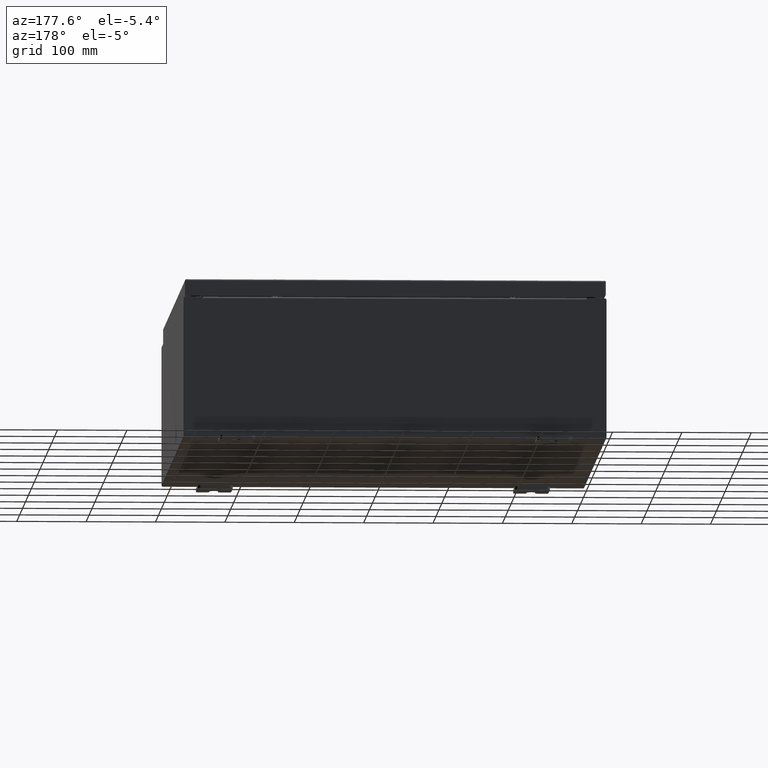
[diagram: clean part render]
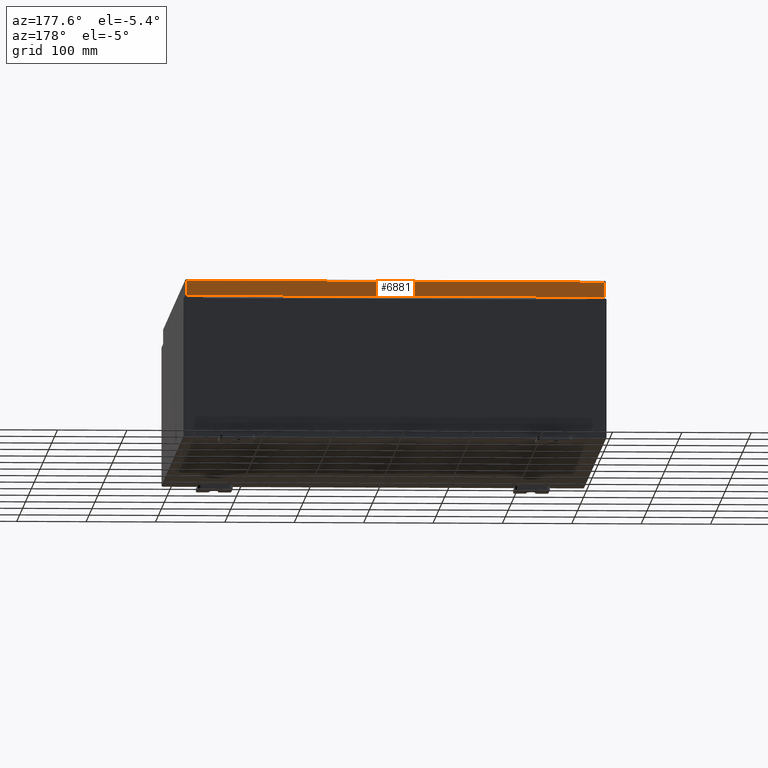
[diagram: same view with one face highlighted and labeled with its STEP entity id]
A machine part, auxiliary view. The second image highlights one B-rep face of the part: STEP entity #6881.
In plain terms, the highlighted planar face has unit normal (0, -1, -0).
Its self-contained STEP definition (entity closure, byte-faithful):
#1768 = FACE_OUTER_BOUND ( 'NONE', #60061, .T. ) ;
#1810 = VERTEX_POINT ( 'NONE', #11573 ) ;
#4214 = CARTESIAN_POINT ( 'NONE',  ( -11.84865786437626900, 14.93750000000000200, -0.07469999999999980800 ) ) ;
#6784 = EDGE_CURVE ( 'NONE', #49560, #60372, #44354, .T. ) ;
#6881 = ADVANCED_FACE ( 'NONE', ( #1768 ), #16275, .F. ) ;
#7036 = ORIENTED_EDGE ( 'NONE', *, *, #33669, .F. ) ;
#7992 = DIRECTION ( 'NONE',  ( 1.000000000000000000, -4.379057701015054300E-047, 1.258652478756310100E-016 ) ) ;
#9500 = CARTESIAN_POINT ( 'NONE',  ( -11.93750000000000000, 14.93750000000000400, -0.9377000000000028600 ) ) ;
#10102 = CARTESIAN_POINT ( 'NONE',  ( -11.84865786437626900, 14.93750000000000400, -0.9377000000000028600 ) ) ;
#11573 = CARTESIAN_POINT ( 'NONE',  ( 11.84865786437626800, 14.93750000000000200, -0.08769999999999789100 ) ) ;
#15082 = DIRECTION ( 'NONE',  ( -0.0000000000000000000, 2.532419924601857400E-015, -1.000000000000000000 ) ) ;
#16275 = PLANE ( 'NONE',  #33646 ) ;
#17974 = VECTOR ( 'NONE', #15082, 39.37007874015748100 ) ;
#19557 = VECTOR ( 'NONE', #7992, 39.37007874015748100 ) ;
#21052 = VERTEX_POINT ( 'NONE', #30018 ) ;
#24473 = ORIENTED_EDGE ( 'NONE', *, *, #6784, .F. ) ;
#26992 = ORIENTED_EDGE ( 'NONE', *, *, #53516, .T. ) ;
#30018 = CARTESIAN_POINT ( 'NONE',  ( -11.84865786437626800, 14.93750000000000200, -0.08769999999999898700 ) ) ;
#30750 = DIRECTION ( 'NONE',  ( 0.0000000000000000000, 2.532419924601857400E-015, -1.000000000000000000 ) ) ;
#31533 = VECTOR ( 'NONE', #50950, 39.37007874015748100 ) ;
#33310 = CARTESIAN_POINT ( 'NONE',  ( 11.84865786437626900, 14.93750000000000200, 3.808883627975183000E-014 ) ) ;
#33646 = AXIS2_PLACEMENT_3D ( 'NONE', #33976, #58529, #30750 ) ;
#33669 = EDGE_CURVE ( 'NONE', #21052, #49560, #57526, .T. ) ;
#33976 = CARTESIAN_POINT ( 'NONE',  ( -4.761233444182044100E-030, 14.93750000000000200, 3.808883627975183000E-014 ) ) ;
#38282 = DIRECTION ( 'NONE',  ( 0.0000000000000000000, 2.532419924601857400E-015, -1.000000000000000000 ) ) ;
#44354 = LINE ( 'NONE', #9500, #19557 ) ;
#44830 = VECTOR ( 'NONE', #38282, 39.37007874015748100 ) ;
#49560 = VERTEX_POINT ( 'NONE', #10102 ) ;
#49589 = ORIENTED_EDGE ( 'NONE', *, *, #55346, .F. ) ;
#50009 = CARTESIAN_POINT ( 'NONE',  ( 11.84865786437626800, 14.93750000000000400, -0.9376999999999997600 ) ) ;
#50950 = DIRECTION ( 'NONE',  ( -1.000000000000000000, -8.693008950959990500E-032, -9.153836209136798400E-017 ) ) ;
#53516 = EDGE_CURVE ( 'NONE', #1810, #60372, #56453, .T. ) ;
#55346 = EDGE_CURVE ( 'NONE', #1810, #21052, #59468, .T. ) ;
#56453 = LINE ( 'NONE', #33310, #44830 ) ;
#57526 = LINE ( 'NONE', #4214, #17974 ) ;
#58529 = DIRECTION ( 'NONE',  ( 3.187436615351995300E-031, -1.000000000000000000, -2.532419924601857400E-015 ) ) ;
#59468 = LINE ( 'NONE', #61175, #31533 ) ;
#60061 = EDGE_LOOP ( 'NONE', ( #49589, #26992, #24473, #7036 ) ) ;
#60372 = VERTEX_POINT ( 'NONE', #50009 ) ;
#61175 = CARTESIAN_POINT ( 'NONE',  ( -11.93750000000000000, 14.93750000000000200, -0.08770000000000008300 ) ) ;